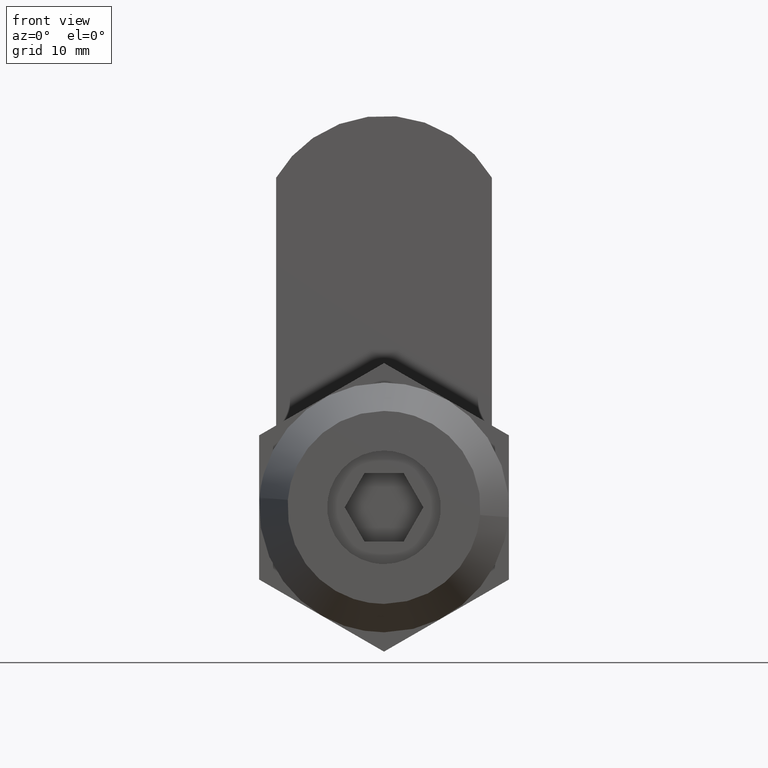
[diagram: clean part render]
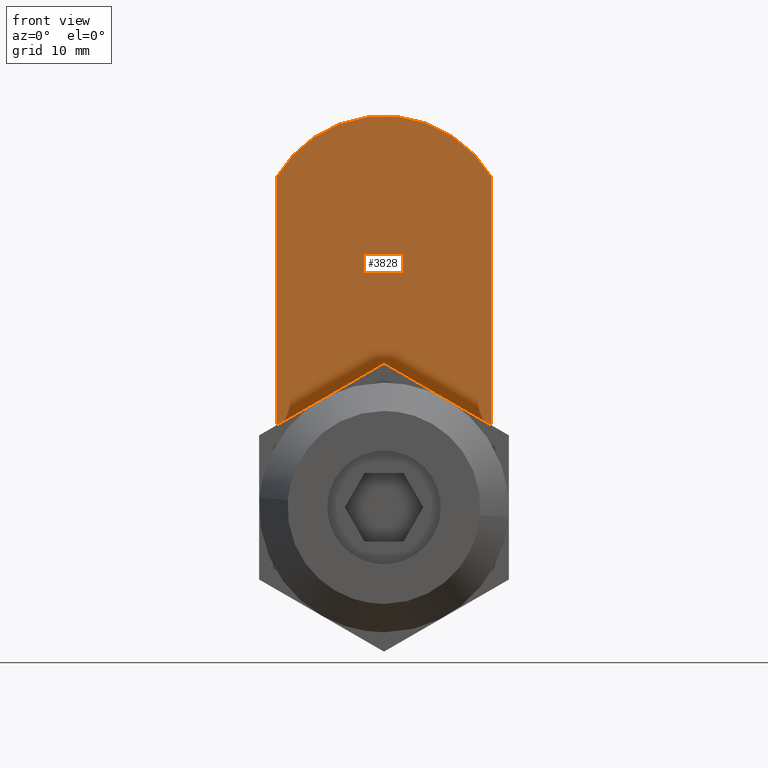
[diagram: same view with one face highlighted and labeled with its STEP entity id]
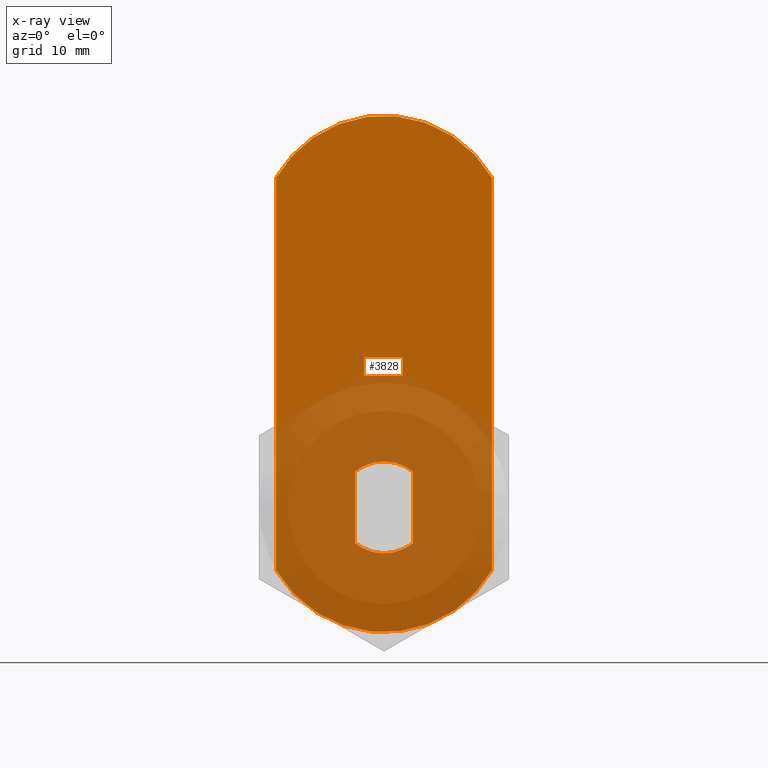
[diagram: x-ray of the same camera — body ghosted, the highlighted face saturated]
A machine part, front view. The second image highlights one B-rep face of the part: STEP entity #3828.
The next image is the same camera in x-ray: the body ghosted, the highlighted face saturated — about 43% of this face is hidden behind the body in this view.
In plain terms, the highlighted face is a freeform B-spline surface patch.
Its self-contained STEP definition (entity closure, byte-faithful):
#3727=CARTESIAN_POINT('',(-10.449050162923021,23.699999999999999,36.772724911811522));
#3728=CARTESIAN_POINT('',(10.449054671516190,23.699999999999999,36.772724911811522));
#3729=CARTESIAN_POINT('',(-10.449050162923021,23.699999999999999,-13.272726132217359));
#3730=CARTESIAN_POINT('',(10.449054671516190,23.699999999999999,-13.272726132217359));
#3731=B_SPLINE_SURFACE_WITH_KNOTS('',1,1,((#3727,#3729),(#3728,#3730)),.UNSPECIFIED.,.F.,.F.,.U.,(2,2),(2,2),(0.0,20.898104834439220),(0.0,50.045451044028880),.UNSPECIFIED.);
#3732=CARTESIAN_POINT('',(9.500000000000000,23.699999999999999,-5.545268253204820));
#3733=VERTEX_POINT('',#3732);
#3734=CARTESIAN_POINT('',(9.500003998973350,23.699999999999999,29.045261402268501));
#3735=VERTEX_POINT('',#3734);
#3736=CARTESIAN_POINT('',(9.500000000000000,23.699999999999999,-5.545268253204820));
#3737=CARTESIAN_POINT('',(9.500003998973350,23.699999999999999,29.045261402268501));
#3738=QUASI_UNIFORM_CURVE('',1,(#3736,#3737),.UNSPECIFIED.,.F.,.U.);
#3739=EDGE_CURVE('',#3733,#3735,#3738,.T.);
#3740=ORIENTED_EDGE('',*,*,#3739,.T.);
#3741=CARTESIAN_POINT('',(-9.500000000000000,23.699999999999999,29.045268253204551));
#3742=VERTEX_POINT('',#3741);
#3743=CARTESIAN_POINT('',(9.500003998973350,23.699999999999999,29.045261402268501));
#3744=CARTESIAN_POINT('',(6.316011783816053,23.699999999999999,34.499997722601563));
#3745=CARTESIAN_POINT('',(0.000003966330559,23.699999999999999,34.499999999999282));
#3746=CARTESIAN_POINT('',(-6.316003851154928,23.699999999999999,34.500002277396995));
#3747=CARTESIAN_POINT('',(-9.500000000000000,23.699999999999999,29.045268253204551));
#3755=(BOUNDED_CURVE()B_SPLINE_CURVE(2,(#3743,#3744,#3745,#3746,#3747),.UNSPECIFIED.,.F.,.U.)B_SPLINE_CURVE_WITH_KNOTS((3,2,3),(0.0,0.500000000000000,1.0),.UNSPECIFIED.)CURVE()GEOMETRIC_REPRESENTATION_ITEM()RATIONAL_B_SPLINE_CURVE((1.0,0.867212483864168,1.0,0.867212483864168,1.0))REPRESENTATION_ITEM(''));
#3756=EDGE_CURVE('',#3735,#3742,#3755,.T.);
#3757=ORIENTED_EDGE('',*,*,#3756,.T.);
#3758=CARTESIAN_POINT('',(-9.500000000000000,23.699999999999999,-5.545268253204790));
#3759=VERTEX_POINT('',#3758);
#3760=CARTESIAN_POINT('',(-9.500000000000000,23.699999999999999,29.045268253204551));
#3761=CARTESIAN_POINT('',(-9.500000000000000,23.699999999999999,-5.545268253204790));
#3762=QUASI_UNIFORM_CURVE('',1,(#3760,#3761),.UNSPECIFIED.,.F.,.U.);
#3763=EDGE_CURVE('',#3742,#3759,#3762,.T.);
#3764=ORIENTED_EDGE('',*,*,#3763,.T.);
#3765=CARTESIAN_POINT('',(-9.500000000000014,23.699999999999999,-5.545268253204804));
#3766=CARTESIAN_POINT('',(-6.316005180499828,23.699999999999996,-11.000000000000115));
#3767=CARTESIAN_POINT('',(-3.552714E-015,23.699999999999999,-11.000000000000110));
#3768=CARTESIAN_POINT('',(6.316005180499806,23.699999999999996,-11.000000000000115));
#3769=CARTESIAN_POINT('',(9.499999999999995,23.699999999999999,-5.545268253204823));
#3777=(BOUNDED_CURVE()B_SPLINE_CURVE(2,(#3765,#3766,#3767,#3768,#3769),.UNSPECIFIED.,.F.,.U.)B_SPLINE_CURVE_WITH_KNOTS((3,2,3),(0.0,0.500000000000000,1.0),.UNSPECIFIED.)CURVE()GEOMETRIC_REPRESENTATION_ITEM()RATIONAL_B_SPLINE_CURVE((1.0,0.867212573636326,1.0,0.867212573636326,1.0))REPRESENTATION_ITEM(''));
#3778=EDGE_CURVE('',#3759,#3733,#3777,.T.);
#3779=ORIENTED_EDGE('',*,*,#3778,.T.);
#3780=EDGE_LOOP('',(#3740,#3757,#3764,#3779));
#3781=FACE_OUTER_BOUND('',#3780,.T.);
#3782=CARTESIAN_POINT('',(2.550000000000000,23.699999999999999,3.146426544510340));
#3783=VERTEX_POINT('',#3782);
#3784=CARTESIAN_POINT('',(-2.550000000000000,23.699999999999999,3.146426544510340));
#3785=VERTEX_POINT('',#3784);
#3786=CARTESIAN_POINT('',(2.550000000000001,23.699999999999999,3.146426544510337));
#3787=CARTESIAN_POINT('',(2.952499E-015,23.699999999999999,5.213056706700163));
#3788=CARTESIAN_POINT('',(-2.550000000000001,23.699999999999999,3.146426544510343));
#3796=(BOUNDED_CURVE()B_SPLINE_CURVE(2,(#3786,#3787,#3788),.UNSPECIFIED.,.F.,.U.)CURVE()GEOMETRIC_REPRESENTATION_ITEM()QUASI_UNIFORM_CURVE()RATIONAL_B_SPLINE_CURVE((1.0,0.776895443089001,1.0))REPRESENTATION_ITEM(''));
#3797=EDGE_CURVE('',#3783,#3785,#3796,.T.);
#3798=ORIENTED_EDGE('',*,*,#3797,.F.);
#3799=CARTESIAN_POINT('',(2.550000000000000,23.699999999999999,-3.146426544510570));
#3800=VERTEX_POINT('',#3799);
#3801=CARTESIAN_POINT('',(2.550000000000000,23.699999999999999,-3.146426544510570));
#3802=CARTESIAN_POINT('',(2.550000000000000,23.699999999999999,3.146426544510340));
#3803=QUASI_UNIFORM_CURVE('',1,(#3801,#3802),.UNSPECIFIED.,.F.,.U.);
#3804=EDGE_CURVE('',#3800,#3783,#3803,.T.);
#3805=ORIENTED_EDGE('',*,*,#3804,.F.);
#3806=CARTESIAN_POINT('',(-2.550000000000000,23.699999999999999,-3.146426544510570));
#3807=VERTEX_POINT('',#3806);
#3808=CARTESIAN_POINT('',(-2.550000000000000,23.699999999999999,-3.146426544510570));
#3809=CARTESIAN_POINT('',(-5.169476E-016,23.699999999999996,-5.213056706700387));
#3810=CARTESIAN_POINT('',(2.549999999999997,23.699999999999999,-3.146426544510568));
#3818=(BOUNDED_CURVE()B_SPLINE_CURVE(2,(#3808,#3809,#3810),.UNSPECIFIED.,.F.,.U.)CURVE()GEOMETRIC_REPRESENTATION_ITEM()QUASI_UNIFORM_CURVE()RATIONAL_B_SPLINE_CURVE((1.0,0.776895443089001,1.0))REPRESENTATION_ITEM(''));
#3819=EDGE_CURVE('',#3807,#3800,#3818,.T.);
#3820=ORIENTED_EDGE('',*,*,#3819,.F.);
#3821=CARTESIAN_POINT('',(-2.550000000000000,23.699999999999999,3.146426544510340));
#3822=CARTESIAN_POINT('',(-2.550000000000000,23.699999999999999,-3.146426544510570));
#3823=QUASI_UNIFORM_CURVE('',1,(#3821,#3822),.UNSPECIFIED.,.F.,.U.);
#3824=EDGE_CURVE('',#3785,#3807,#3823,.T.);
#3825=ORIENTED_EDGE('',*,*,#3824,.F.);
#3826=EDGE_LOOP('',(#3798,#3805,#3820,#3825));
#3827=FACE_BOUND('',#3826,.T.);
#3828=ADVANCED_FACE('',(#3781,#3827),#3731,.F.);